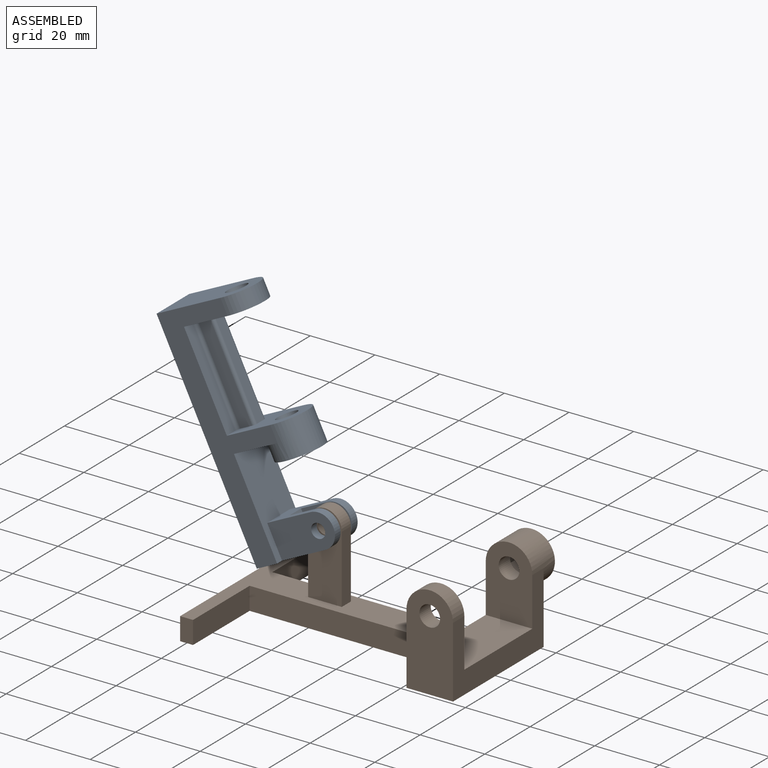
[diagram: assembled view]
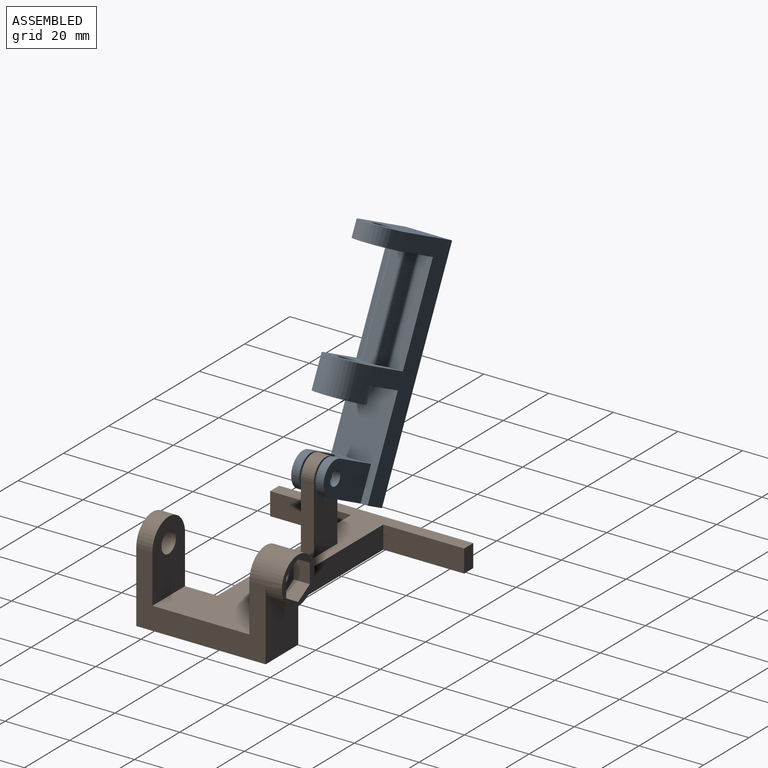
[diagram: assembled view, second angle]
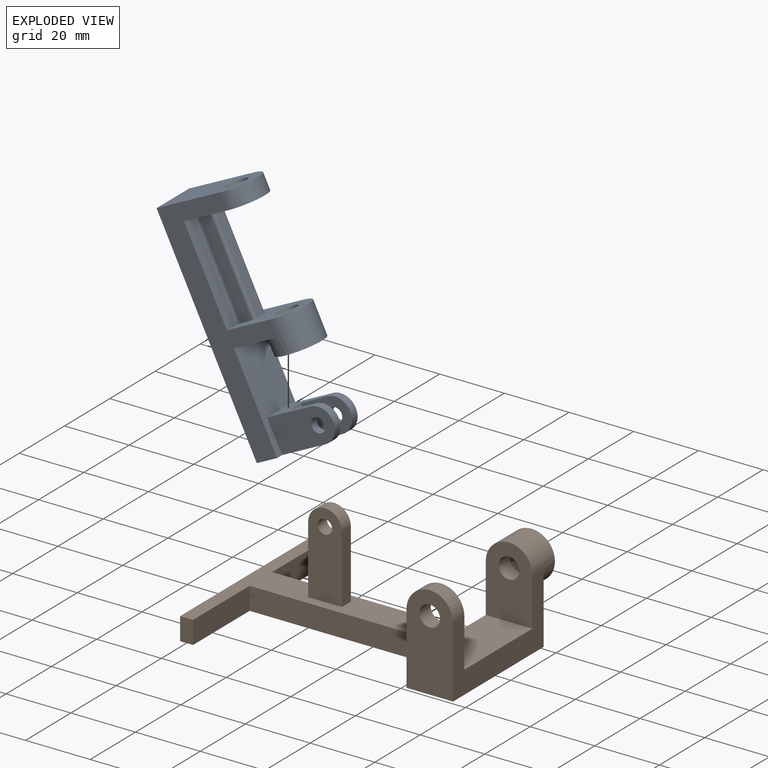
[diagram: exploded view]
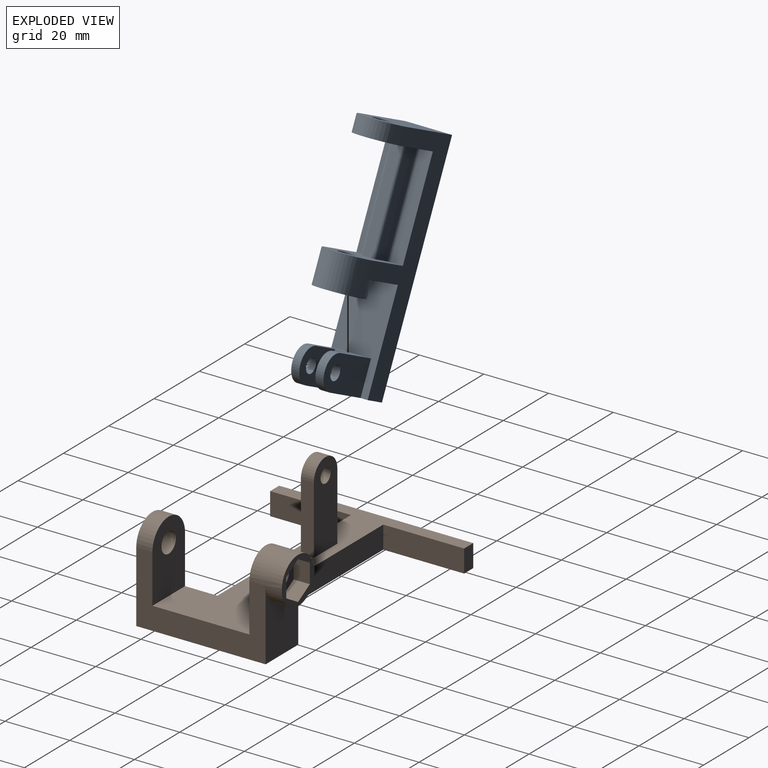
[diagram: exploded view, second angle]
ASSEMBLY  parts=2 mates=2
PART A: 40 faces, bbox 70.2x14.4x29.2 mm
  f0: cylinder r=5.2mm len=10.4mm, axis (0,1,0), area 40.8mm2, adj f1,f32,f36,f38
  f1: plane 15x10mm, normal (1,0,0), area 104mm2, adj f0,f31,f33,f35,f36,f37,f38,f39
  f2: cylinder r=2.2mm len=4.4mm, axis (0,1,0), area 34.6mm2, adj f36,f38
  f3: plane 15x14.4mm, normal (-1,0,0), area 134.6mm2, adj f9,f10,f11,f31
  f4: plane 30x3.7mm, normal (0,0,-1), area 111mm2, adj f5,f7,f9,f28
  f5: plane 22.2x14.4mm, normal (-1,0,0), area 235.3mm2, adj f4,f6,f9,f11,f22,f23,f24,f25
  f6: plane 30x3.7mm, normal (0,0,-1), area 111mm2, adj f5,f7,f11,f27
  f7: plane 22.2x14.4mm, normal (1,0,0), area 235.3mm2, adj f4,f6,f9,f10,f11,f12,f24,f25
  f8: plane 12.01x10.4mm, normal (-1,0,0), area 61.5mm2, adj f12,f14,f15,f16,f17,f18,f19
  f9: plane 70.2x22mm, normal (0,-1,0), area 641.4mm2, adj f3,f4,f5,f7,f10,f13,f21,f22
  f10: cylinder r=7.2mm len=14.4mm, axis (1,0,0), area 339.3mm2, adj f3,f7,f9,f11,f20
  f11: plane 70.2x22mm, normal (0,1,0), area 641.4mm2, adj f3,f5,f6,f7,f10,f13,f21,f22
  f12: cylinder r=3.2mm len=6.4mm, axis (1,0,0), area 100.5mm2, adj f7,f8
  f13: plane 70.2x14.4mm, normal (0,0,1), area 1010.9mm2, adj f9,f11,f21,f32
  f14: plane 5.2x5mm, normal (0,0.5,-0.87), area 30mm2, adj f8,f15,f19,f20
  f15: plane 6x5mm, normal (0,1,0), area 30mm2, adj f8,f14,f16,f20
  f16: plane 5.2x5mm, normal (0,0.5,0.87), area 30mm2, adj f8,f15,f17,f20
  f17: plane 5.2x5mm, normal (0,-0.5,0.87), area 30mm2, adj f8,f16,f18,f20
  f18: plane 6x5mm, normal (0,-1,0), area 30mm2, adj f8,f17,f19,f20
  f19: plane 5.2x5mm, normal (0,-0.5,-0.87), area 30mm2, adj f8,f14,f18,f20
  f20: plane 14.4x14.4mm, normal (-1,0,0), area 69.2mm2, adj f10,f14,f15,f16,f17,f18,f19
  f21: plane 29.2x14.4mm, normal (1,0,0), area 366.1mm2, adj f9,f11,f13,f22,f23
  f22: cylinder r=7.2mm len=14.4mm, axis (-1,0,0), area 113.1mm2, adj f5,f9,f11,f21
  f23: cylinder r=3.2mm len=6.4mm, axis (-1,0,0), area 100.5mm2, adj f5,f21
  f24: plane 30x4mm, normal (0,-1,0), area 120mm2, adj f5,f7,f28,f30
  f25: plane 30x4mm, normal (0,1,0), area 120mm2, adj f5,f7,f27,f29
  f26: plane 30x3mm, normal (0,0,-1), area 90mm2, adj f5,f7,f29,f30
  f27: cylinder r=1mm len=30mm, axis (1,0,0), area 47.1mm2, adj f5,f6,f7,f25
  f28: cylinder r=1mm len=30mm, axis (-1,0,0), area 47.1mm2, adj f4,f5,f7,f24
  f29: cylinder r=1mm len=30mm, axis (-1,0,0), area 47.1mm2, adj f5,f7,f25,f26
  f30: cylinder r=1mm len=30mm, axis (1,0,0), area 47.1mm2, adj f5,f7,f24,f26
  f31: plane 30.2x14.4mm, normal (0,0,-1), area 330.9mm2, adj f1,f3,f9,f11,f32,f35,f36
  f32: plane 22x14.4mm, normal (-1,0,0), area 204.8mm2, adj f0,f9,f11,f13,f31,f33,f35,f36
  f33: cylinder r=5.2mm len=10.4mm, axis (0,1,0), area 40.8mm2, adj f1,f32,f35,f39
  f34: cylinder r=2.2mm len=4.4mm, axis (0,1,0), area 34.6mm2, adj f35,f39
  f35: plane 20.2x10.4mm, normal (0,-1,0), area 183.3mm2, adj f1,f31,f32,f33,f34
  f36: plane 20.2x10.4mm, normal (0,1,0), area 183.3mm2, adj f0,f1,f2,f31,f32
  f37: plane 10.4x5mm, normal (0,0,-1), area 52mm2, adj f1,f32,f38,f39
  f38: plane 14.4x10.4mm, normal (0,-1,0), area 122.9mm2, adj f0,f1,f2,f32,f37
  f39: plane 14.4x10.4mm, normal (0,1,0), area 122.9mm2, adj f1,f32,f33,f34,f37
PART B: 34 faces, bbox 77.4x60x33.2 mm
  f0: plane 21x4mm, normal (-1,0,0), area 84mm2, adj f14,f24,f27,f28
  f1: plane 22x15mm, normal (-1,0,0), area 180mm2, adj f2,f7,f11,f12,f14,f22
  f2: plane 22x14.4mm, normal (0,1,0), area 235.4mm2, adj f1,f7,f8,f12
  f3: plane 12.01x10.4mm, normal (0,1,0), area 61.5mm2, adj f13,f15,f16,f17,f18,f19,f20
  f4: plane 22.2x14.4mm, normal (0,1,0), area 265.3mm2, adj f5,f6,f8,f9,f14
  f5: cylinder r=7.2mm len=14.4mm, axis (0,1,0), area 113.1mm2, adj f4,f6,f8,f10
  f6: plane 22x15mm, normal (-1,0,0), area 180mm2, adj f4,f5,f7,f10,f14,f23
  f7: plane 77.4x60mm, normal (0,0,-1), area 1406mm2, adj f1,f2,f6,f8,f10,f22,f23,f29
  f8: plane 40x22mm, normal (1,0,0), area 430mm2, adj f2,f4,f5,f7,f10,f11,f12,f14
  f9: cylinder r=3.2mm len=6.4mm, axis (0,1,0), area 100.5mm2, adj f4,f10
  f10: plane 29.2x14.4mm, normal (0,-1,0), area 366.1mm2, adj f5,f6,f7,f8,f9
  f11: plane 22.2x14.4mm, normal (0,-1,0), area 265.3mm2, adj f1,f8,f12,f13,f14
  f12: cylinder r=7.2mm len=14.4mm, axis (0,-1,0), area 339.3mm2, adj f1,f2,f8,f11,f21
  f13: cylinder r=3.2mm len=6.4mm, axis (0,-1,0), area 100.5mm2, adj f3,f11
  f14: plane 77.4x60mm, normal (0,0,1), area 1220.4mm2, adj f0,f1,f4,f6,f8,f11,f22,f23
  f15: plane 5.2x5mm, normal (0.5,0,-0.87), area 30mm2, adj f3,f16,f20,f21
  f16: plane 6x5mm, normal (1,0,0), area 30mm2, adj f3,f15,f17,f21
  f17: plane 5.2x5mm, normal (0.5,0,0.87), area 30mm2, adj f3,f16,f18,f21
  f18: plane 5.2x5mm, normal (-0.5,0,0.87), area 30mm2, adj f3,f17,f19,f21
  f19: plane 6x5mm, normal (-1,0,0), area 30mm2, adj f3,f18,f20,f21
  f20: plane 5.2x5mm, normal (-0.5,0,-0.87), area 30mm2, adj f3,f15,f19,f21
  f21: plane 14.4x14.4mm, normal (0,1,0), area 69.2mm2, adj f12,f15,f16,f17,f18,f19,f20
  f22: plane 59x7mm, normal (0,1,0), area 413mm2, adj f1,f7,f14,f32
  f23: plane 59x7mm, normal (0,-1,0), area 413mm2, adj f6,f7,f14,f30
  f24: cylinder r=5.2mm len=10.4mm, axis (0,1,0), area 65.3mm2, adj f0,f25,f27,f28
  f25: plane 21x4mm, normal (1,0,0), area 84mm2, adj f14,f24,f27,f28
  f26: cylinder r=2.2mm len=4.4mm, axis (0,1,0), area 55.3mm2, adj f27,f28
  f27: plane 26.2x10.4mm, normal (0,-1,0), area 245.7mm2, adj f0,f14,f24,f25,f26
  f28: plane 26.2x10.4mm, normal (0,1,0), area 245.7mm2, adj f0,f14,f24,f25,f26
  f29: plane 60x7mm, normal (-1,0,0), area 420mm2, adj f7,f14,f31,f33
  f30: plane 25x7mm, normal (1,0,0), area 175mm2, adj f7,f14,f23,f31
  f31: plane 7x4mm, normal (0,-1,0), area 28mm2, adj f7,f14,f29,f30
  f32: plane 25x7mm, normal (1,0,0), area 175mm2, adj f7,f14,f22,f33
  f33: plane 7x4mm, normal (0,1,0), area 28mm2, adj f7,f14,f29,f32
PLACE A rot(axis=(0,-1,0),116.2deg) t=(-47.33,-2.76,33.15)mm
PLACE B t=(-4.09,-2.76,6.23)mm fixed
MATE planar A.f35 <-> B.f23  axis (0,-1,0) through (-39.36,-7.76,3.64)mm
MATE cylindrical A.f0 <-> B.f26  axis (0,-1,0) through (-34.09,-7.76,6.23)mm
